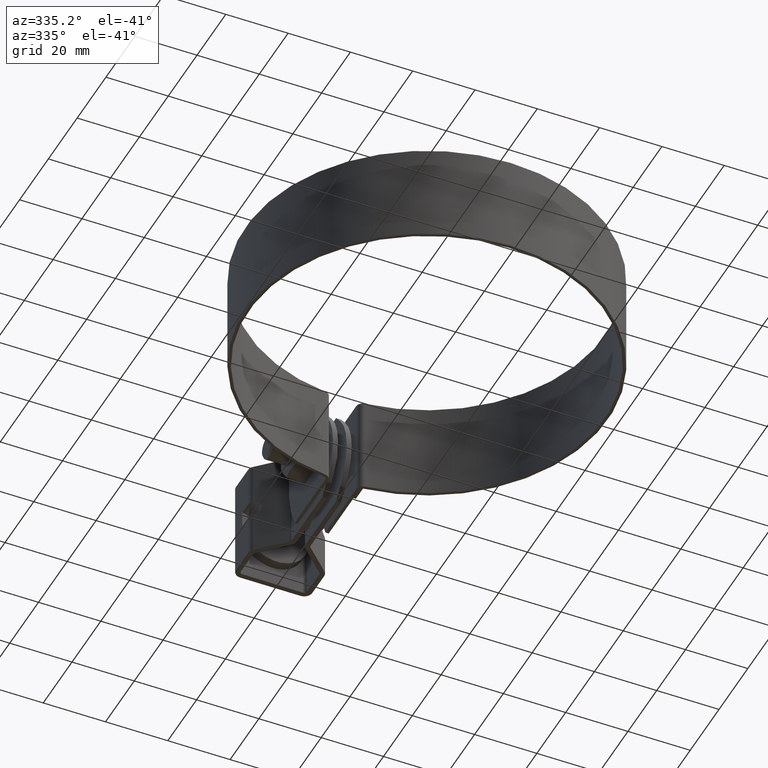
[diagram: clean part render]
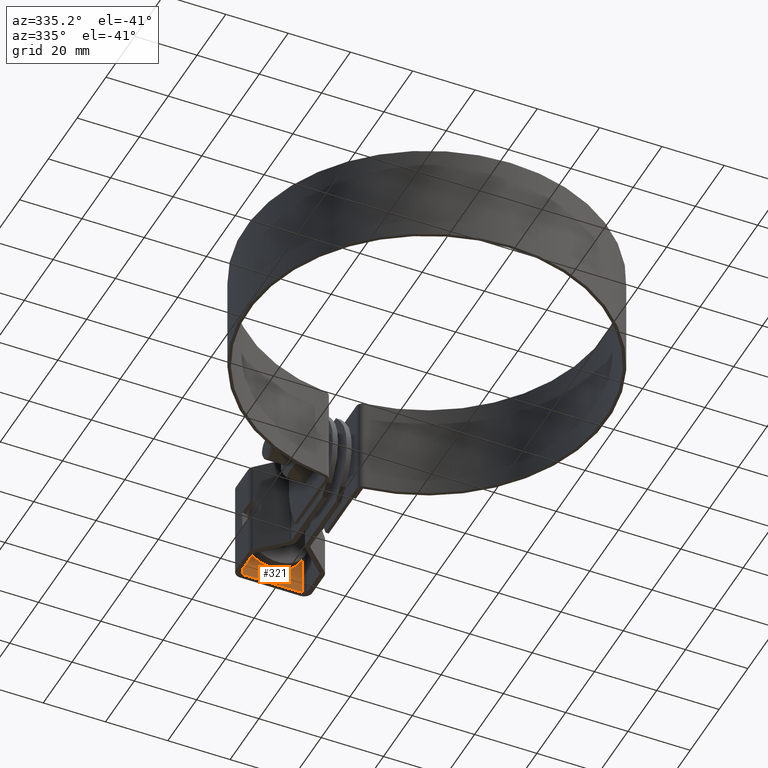
[diagram: same view with one face highlighted and labeled with its STEP entity id]
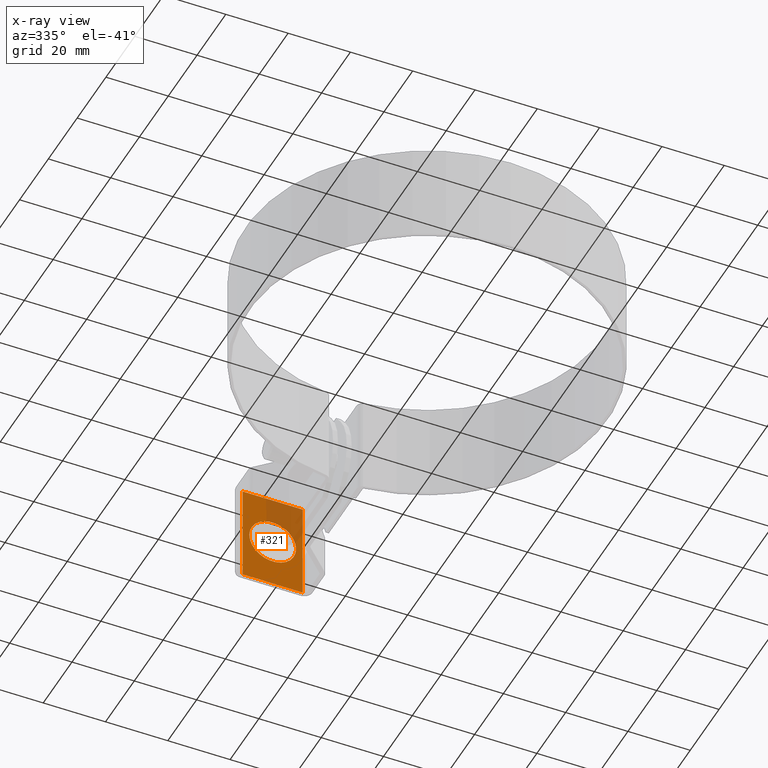
[diagram: x-ray of the same camera — body ghosted, the highlighted face saturated]
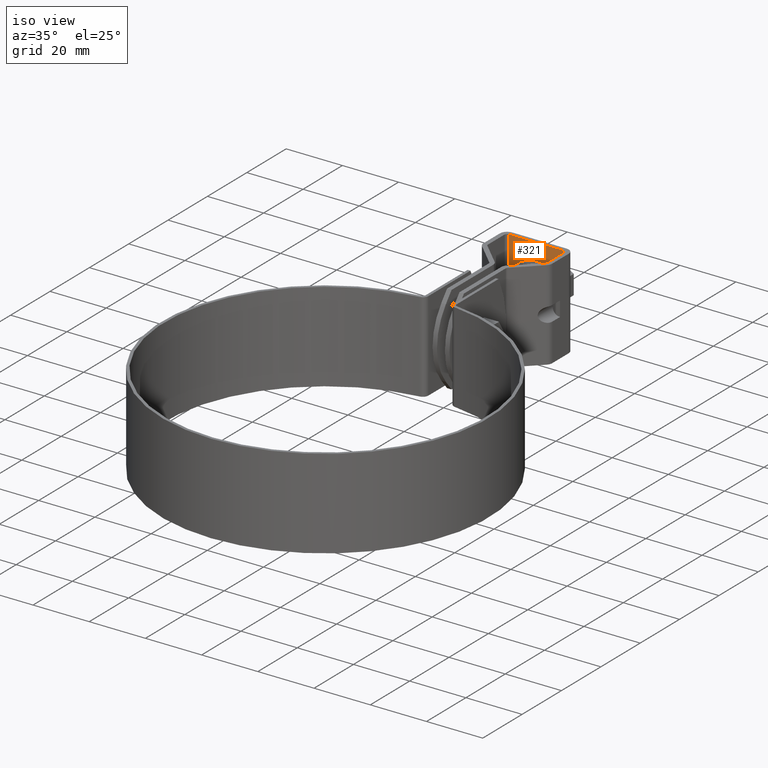
[diagram: same view with one face highlighted and labeled with its STEP entity id]
A machine part, auxiliary view. The second image highlights one B-rep face of the part: STEP entity #321.
The next image is the same camera in x-ray: the body ghosted, the highlighted face saturated — about 27% of this face is hidden behind the body in this view.
A second angle (iso view) of the same face is appended — the face is thin or edge-on in the first view.
In plain terms, the highlighted planar face has unit normal (-0, -1, -0).
Its self-contained STEP definition (entity closure, byte-faithful):
#321 = ADVANCED_FACE( '', ( #504, #505 ), #506, .T. );
#504 = FACE_OUTER_BOUND( '', #760, .T. );
#505 = FACE_BOUND( '', #761, .T. );
#506 = PLANE( '', #762 );
#760 = EDGE_LOOP( '', ( #1306, #1307, #1308, #1309 ) );
#761 = EDGE_LOOP( '', ( #1310 ) );
#762 = AXIS2_PLACEMENT_3D( '', #1311, #1312, #1313 );
#1306 = ORIENTED_EDGE( '', *, *, #1947, .F. );
#1307 = ORIENTED_EDGE( '', *, *, #1948, .F. );
#1308 = ORIENTED_EDGE( '', *, *, #1949, .T. );
#1309 = ORIENTED_EDGE( '', *, *, #1950, .T. );
#1310 = ORIENTED_EDGE( '', *, *, #1951, .T. );
#1311 = CARTESIAN_POINT( '', ( -9.64999999999981, 107.122559184213, -12.4999999999792 ) );
#1312 = DIRECTION( '', ( -3.63293213424916E-015, -1.00000000000000, -1.42719169815570E-013 ) );
#1313 = DIRECTION( '', ( -1.00000000000000, 3.63293213424969E-015, -3.75282687687631E-015 ) );
#1947 = EDGE_CURVE( '', #2325, #2326, #2327, .T. );
#1948 = EDGE_CURVE( '', #2328, #2325, #2329, .T. );
#1949 = EDGE_CURVE( '', #2328, #2330, #2331, .T. );
#1950 = EDGE_CURVE( '', #2330, #2326, #2332, .T. );
#1951 = EDGE_CURVE( '', #2333, #2333, #2334, .T. );
#2325 = VERTEX_POINT( '', #2953 );
#2326 = VERTEX_POINT( '', #2954 );
#2327 = LINE( '', #2955, #2956 );
#2328 = VERTEX_POINT( '', #2957 );
#2329 = LINE( '', #2958, #2959 );
#2330 = VERTEX_POINT( '', #2960 );
#2331 = LINE( '', #2961, #2962 );
#2332 = LINE( '', #2963, #2964 );
#2333 = VERTEX_POINT( '', #2965 );
#2334 = CIRCLE( '', #2966, 7.50000000000000 );
#2953 = CARTESIAN_POINT( '', ( -9.64999999999977, 107.122559184214, -15.9999999999792 ) );
#2954 = CARTESIAN_POINT( '', ( -9.64999999999990, 107.122559184209, 16.0000000000208 ) );
#2955 = CARTESIAN_POINT( '', ( -9.64999999999979, 107.122559184214, -12.4999999999792 ) );
#2956 = VECTOR( '', #3600, 1000.00000000000 );
#2957 = CARTESIAN_POINT( '', ( 9.65000000000021, 107.122559184214, -15.9999999999791 ) );
#2958 = CARTESIAN_POINT( '', ( 9.65000000000021, 107.122559184214, -15.9999999999791 ) );
#2959 = VECTOR( '', #3601, 1000.00000000000 );
#2960 = CARTESIAN_POINT( '', ( 9.65000000000009, 107.122559184209, 16.0000000000209 ) );
#2961 = CARTESIAN_POINT( '', ( 9.65000000000020, 107.122559184213, -12.4999999999791 ) );
#2962 = VECTOR( '', #3602, 1000.00000000000 );
#2963 = CARTESIAN_POINT( '', ( 9.65000000000009, 107.122559184209, 16.0000000000209 ) );
#2964 = VECTOR( '', #3603, 1000.00000000000 );
#2965 = CARTESIAN_POINT( '', ( -7.49999999999985, 107.122557584136, 2.08445058887591E-011 ) );
#2966 = AXIS2_PLACEMENT_3D( '', #3604, #3605, #3606 );
#3600 = DIRECTION( '', ( -3.75282687687682E-015, -1.42719169815570E-013, 1.00000000000000 ) );
#3601 = DIRECTION( '', ( -1.00000000000000, 3.63293213424969E-015, -3.75282687687631E-015 ) );
#3602 = DIRECTION( '', ( -3.75282687687682E-015, -1.42719169815570E-013, 1.00000000000000 ) );
#3603 = DIRECTION( '', ( -1.00000000000000, 3.63293213424969E-015, -3.75282687687631E-015 ) );
#3604 = CARTESIAN_POINT( '', ( 1.46202136602371E-013, 107.122557584136, 2.08721928629529E-011 ) );
#3605 = DIRECTION( '', ( 3.63293213424916E-015, 1.00000000000000, 1.42719169815570E-013 ) );
#3606 = DIRECTION( '', ( -1.00000000000000, 3.63293213424968E-015, -3.69159655918519E-015 ) );